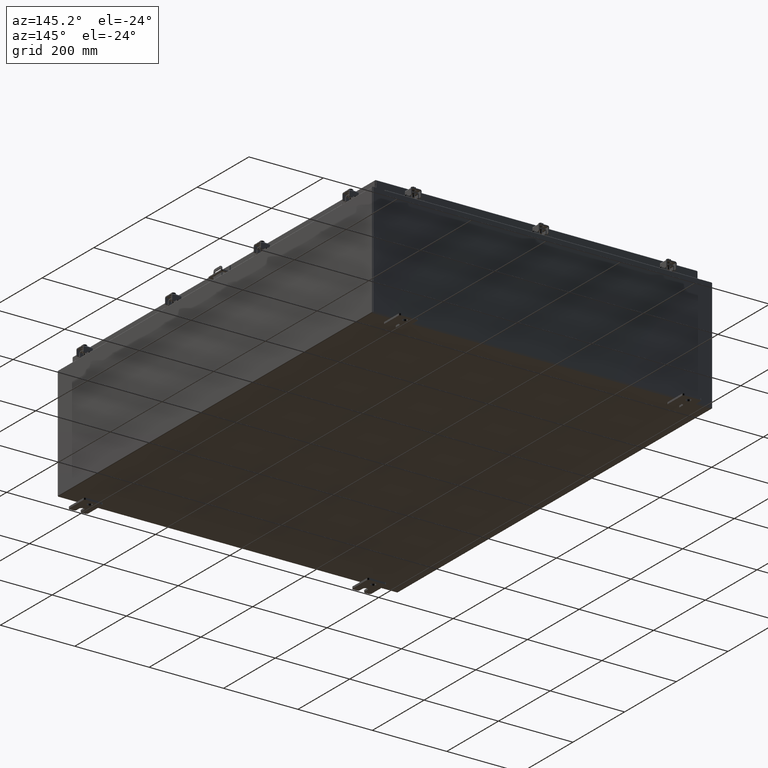
[diagram: clean part render]
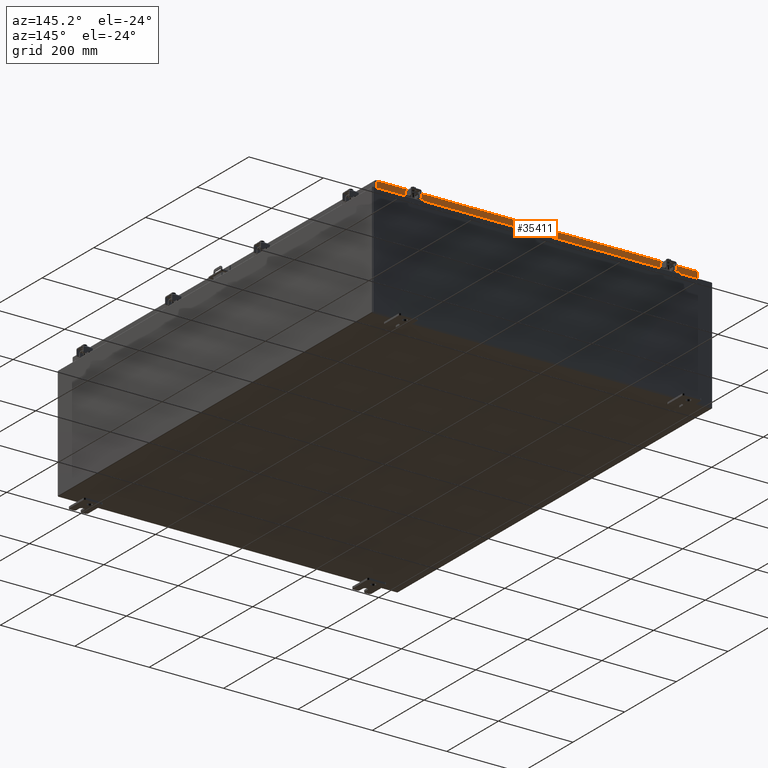
[diagram: same view with one face highlighted and labeled with its STEP entity id]
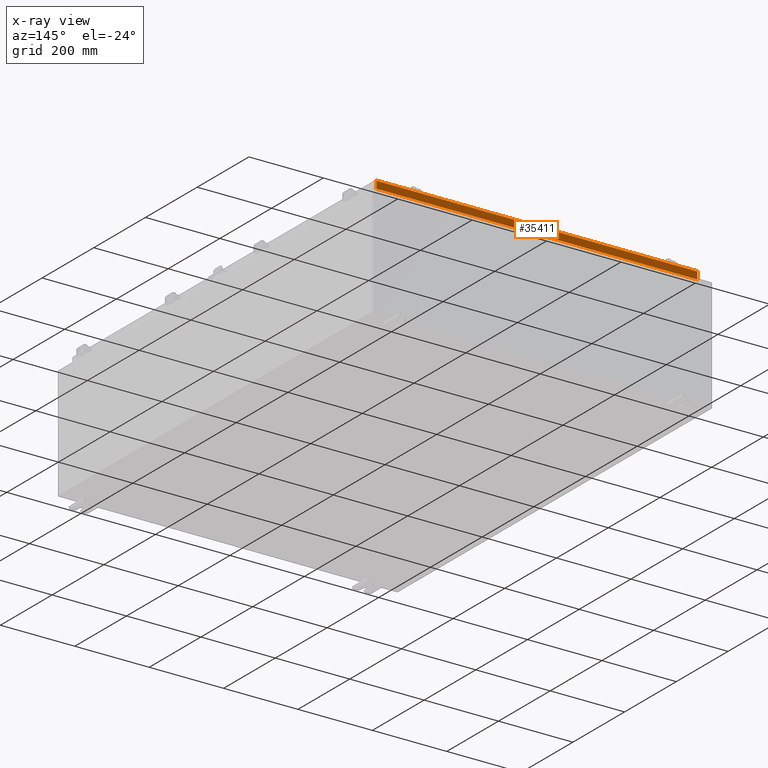
[diagram: x-ray of the same camera — body ghosted, the highlighted face saturated]
A machine part, auxiliary view. The second image highlights one B-rep face of the part: STEP entity #35411.
The next image is the same camera in x-ray: the body ghosted, the highlighted face saturated — about 0% of this face is hidden behind the body in this view.
In plain terms, the highlighted planar face has unit normal (0, -1, -0).
Its self-contained STEP definition (entity closure, byte-faithful):
#3082 = VERTEX_POINT ( 'NONE', #27293 ) ;
#5684 = ORIENTED_EDGE ( 'NONE', *, *, #22832, .F. ) ;
#5819 = DIRECTION ( 'NONE',  ( 1.000000000000000000, -0.0000000000000000000, -0.0000000000000000000 ) ) ;
#7072 = LINE ( 'NONE', #22836, #18115 ) ;
#8450 = EDGE_CURVE ( 'NONE', #35732, #41627, #26372, .T. ) ;
#10302 = CARTESIAN_POINT ( 'NONE',  ( 16.23915786437626400, 23.09400000000000100, -0.8500000000000081900 ) ) ;
#11173 = DIRECTION ( 'NONE',  ( 6.989207801985677300E-031, -1.000000000000000000, -5.637761885544689500E-015 ) ) ;
#13553 = LINE ( 'NONE', #35352, #33283 ) ;
#13984 = CARTESIAN_POINT ( 'NONE',  ( -16.98915786437626400, 23.09400000000000500, -0.07469999999999958600 ) ) ;
#14212 = DIRECTION ( 'NONE',  ( 1.000000000000000000, 8.758115402030108600E-047, 1.239713195391617600E-016 ) ) ;
#14512 = VECTOR ( 'NONE', #30903, 39.37007874015748100 ) ;
#18115 = VECTOR ( 'NONE', #14212, 39.37007874015748100 ) ;
#20145 = VECTOR ( 'NONE', #21599, 39.37007874015748100 ) ;
#21599 = DIRECTION ( 'NONE',  ( 1.000000000000000000, 8.758115402030108600E-047, 1.239713195391617600E-016 ) ) ;
#22832 = EDGE_CURVE ( 'NONE', #50919, #35732, #7072, .T. ) ;
#22836 = CARTESIAN_POINT ( 'NONE',  ( -17.07799999999999600, 23.09400000000000800, -0.8500000000000038600 ) ) ;
#24287 = ORIENTED_EDGE ( 'NONE', *, *, #44699, .F. ) ;
#24645 = ORIENTED_EDGE ( 'NONE', *, *, #8450, .F. ) ;
#26372 = LINE ( 'NONE', #30794, #48601 ) ;
#27293 = CARTESIAN_POINT ( 'NONE',  ( 16.98915786437627100, 23.09400000000000500, -0.08769999999999547600 ) ) ;
#27837 = PLANE ( 'NONE',  #39365 ) ;
#29210 = ORIENTED_EDGE ( 'NONE', *, *, #40418, .T. ) ;
#29806 = EDGE_CURVE ( 'NONE', #3082, #42723, #43998, .T. ) ;
#30629 = CARTESIAN_POINT ( 'NONE',  ( -16.23915786437625600, 23.09400000000000100, -0.8500000000000081900 ) ) ;
#30794 = CARTESIAN_POINT ( 'NONE',  ( -16.23915786437625600, 23.09400000000000100, -0.8500000000000081900 ) ) ;
#30903 = DIRECTION ( 'NONE',  ( -0.0000000000000000000, 5.637761885544689500E-015, -1.000000000000000000 ) ) ;
#32923 = VECTOR ( 'NONE', #47410, 39.37007874015748100 ) ;
#33283 = VECTOR ( 'NONE', #39528, 39.37007874015748100 ) ;
#33751 = CARTESIAN_POINT ( 'NONE',  ( -16.98915786437626400, 23.09400000000000800, -0.8500000000000038600 ) ) ;
#34888 = ORIENTED_EDGE ( 'NONE', *, *, #40250, .F. ) ;
#35352 = CARTESIAN_POINT ( 'NONE',  ( 16.98915786437627100, 23.09400000000000500, 1.304592866407806800E-013 ) ) ;
#35411 = ADVANCED_FACE ( 'NONE', ( #49482 ), #27837, .F. ) ;
#35732 = VERTEX_POINT ( 'NONE', #30629 ) ;
#39365 = AXIS2_PLACEMENT_3D ( 'NONE', #44494, #11173, #40480 ) ;
#39528 = DIRECTION ( 'NONE',  ( 0.0000000000000000000, 5.637761885544689500E-015, -1.000000000000000000 ) ) ;
#40250 = EDGE_CURVE ( 'NONE', #41627, #51914, #42413, .T. ) ;
#40418 = EDGE_CURVE ( 'NONE', #3082, #51914, #13553, .T. ) ;
#40480 = DIRECTION ( 'NONE',  ( 0.0000000000000000000, 5.637761885544689500E-015, -1.000000000000000000 ) ) ;
#41627 = VERTEX_POINT ( 'NONE', #10302 ) ;
#42413 = LINE ( 'NONE', #46652, #20145 ) ;
#42723 = VERTEX_POINT ( 'NONE', #46585 ) ;
#43197 = CARTESIAN_POINT ( 'NONE',  ( -17.07799999999999600, 23.09400000000000500, -0.08769999999999547600 ) ) ;
#43998 = LINE ( 'NONE', #43197, #32923 ) ;
#44494 = CARTESIAN_POINT ( 'NONE',  ( -1.614087649790572800E-029, 23.09400000000000500, 1.304592866407806800E-013 ) ) ;
#44699 = EDGE_CURVE ( 'NONE', #42723, #50919, #47925, .T. ) ;
#46585 = CARTESIAN_POINT ( 'NONE',  ( -16.98915786437626400, 23.09400000000000500, -0.08769999999999549000 ) ) ;
#46652 = CARTESIAN_POINT ( 'NONE',  ( -17.07799999999999600, 23.09400000000000800, -0.8500000000000038600 ) ) ;
#47410 = DIRECTION ( 'NONE',  ( -1.000000000000000000, -6.989207801985679100E-031, -3.922586267643529200E-045 ) ) ;
#47925 = LINE ( 'NONE', #13984, #14512 ) ;
#48601 = VECTOR ( 'NONE', #5819, 39.37007874015748100 ) ;
#49482 = FACE_OUTER_BOUND ( 'NONE', #53823, .T. ) ;
#50919 = VERTEX_POINT ( 'NONE', #33751 ) ;
#51914 = VERTEX_POINT ( 'NONE', #53093 ) ;
#52850 = ORIENTED_EDGE ( 'NONE', *, *, #29806, .F. ) ;
#53093 = CARTESIAN_POINT ( 'NONE',  ( 16.98915786437627100, 23.09400000000000800, -0.8499999999999996400 ) ) ;
#53823 = EDGE_LOOP ( 'NONE', ( #52850, #29210, #34888, #24645, #5684, #24287 ) ) ;